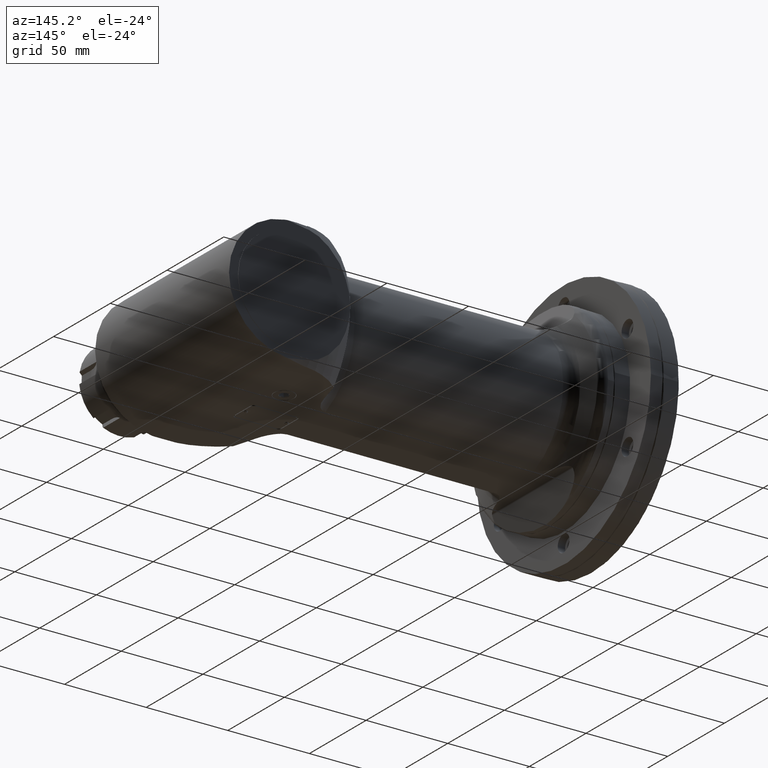
[diagram: clean part render]
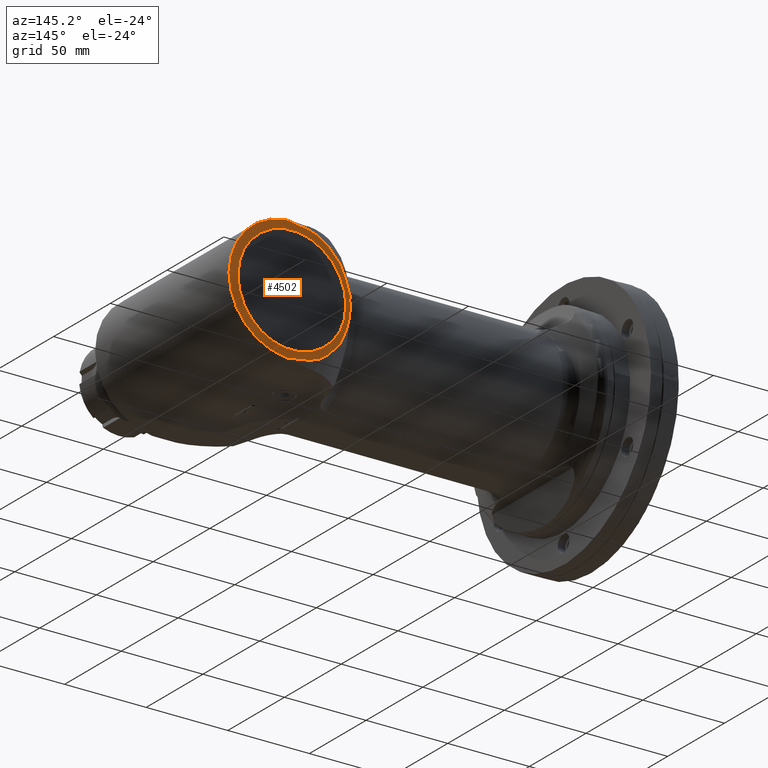
[diagram: same view with one face highlighted and labeled with its STEP entity id]
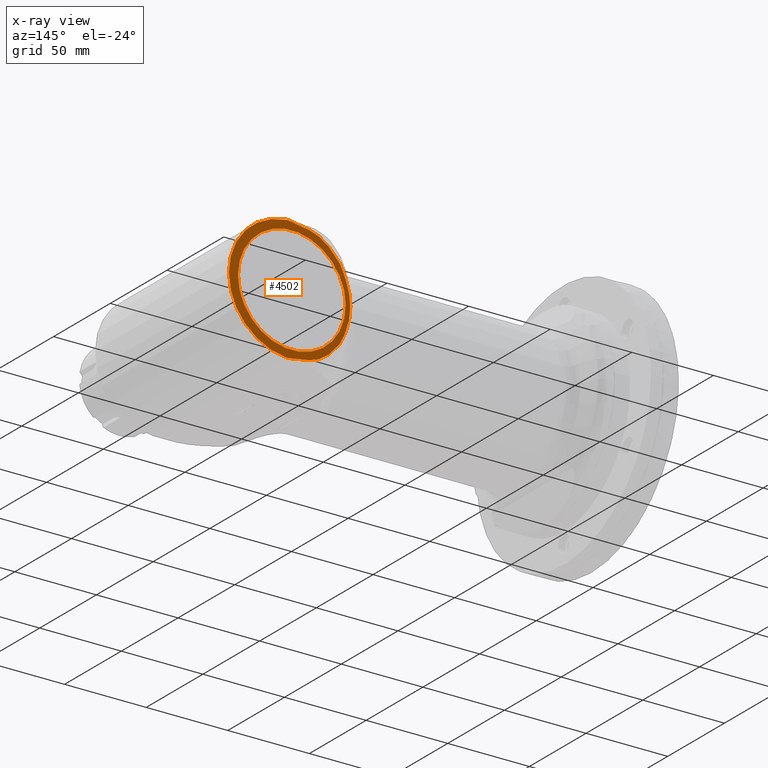
[diagram: x-ray of the same camera — body ghosted, the highlighted face saturated]
A machine part, auxiliary view. The second image highlights one B-rep face of the part: STEP entity #4502.
The next image is the same camera in x-ray: the body ghosted, the highlighted face saturated — about 0% of this face is hidden behind the body in this view.
In plain terms, the highlighted planar face has unit normal (0, -1, 0).
Its self-contained STEP definition (entity closure, byte-faithful):
#133=FACE_BOUND('',#735,.T.);
#251=(
BOUNDED_CURVE()
B_SPLINE_CURVE(2,(#6789,#6790,#6791),.UNSPECIFIED.,.F.,.F.)
B_SPLINE_CURVE_WITH_KNOTS((3,3),(2.9344808573862,4.30098563058808),
 .UNSPECIFIED.)
CURVE()
GEOMETRIC_REPRESENTATION_ITEM()
RATIONAL_B_SPLINE_CURVE((1.00188573708605,1.00205643421687,1.00197718661713))
REPRESENTATION_ITEM('')
);
#252=(
BOUNDED_CURVE()
B_SPLINE_CURVE(2,(#6795,#6796,#6797),.UNSPECIFIED.,.F.,.F.)
B_SPLINE_CURVE_WITH_KNOTS((3,3),(2.71811370431407,3.37089348317896),
 .UNSPECIFIED.)
CURVE()
GEOMETRIC_REPRESENTATION_ITEM()
RATIONAL_B_SPLINE_CURVE((1.00705525668743,1.00746944687986,1.00767565836461))
REPRESENTATION_ITEM('')
);
#275=(
BOUNDED_CURVE()
B_SPLINE_CURVE(2,(#7364,#7365,#7366),.UNSPECIFIED.,.F.,.F.)
B_SPLINE_CURVE_WITH_KNOTS((3,3),(-11.5955866176865,-7.66377423123892),
 .UNSPECIFIED.)
CURVE()
GEOMETRIC_REPRESENTATION_ITEM()
RATIONAL_B_SPLINE_CURVE((1.39892913016397,1.39892913016397,1.35306260130722))
REPRESENTATION_ITEM('')
);
#276=(
BOUNDED_CURVE()
B_SPLINE_CURVE(2,(#7370,#7371,#7372),.UNSPECIFIED.,.F.,.F.)
B_SPLINE_CURVE_WITH_KNOTS((3,3),(-6.20125849455531,-5.31660579783895),
 .UNSPECIFIED.)
CURVE()
GEOMETRIC_REPRESENTATION_ITEM()
RATIONAL_B_SPLINE_CURVE((1.02211110432455,1.0241005158453,1.02507233728092))
REPRESENTATION_ITEM('')
);
#277=(
BOUNDED_CURVE()
B_SPLINE_CURVE(2,(#7378,#7379,#7380),.UNSPECIFIED.,.F.,.F.)
B_SPLINE_CURVE_WITH_KNOTS((3,3),(-4.3009856305943,-2.93448085738645),
 .UNSPECIFIED.)
CURVE()
GEOMETRIC_REPRESENTATION_ITEM()
RATIONAL_B_SPLINE_CURVE((1.0019771866171,1.00205643421684,1.00188573708602))
REPRESENTATION_ITEM('')
);
#278=(
BOUNDED_CURVE()
B_SPLINE_CURVE(2,(#7382,#7383,#7384),.UNSPECIFIED.,.F.,.F.)
B_SPLINE_CURVE_WITH_KNOTS((3,3),(-3.37089348317902,-2.71811370431375),
 .UNSPECIFIED.)
CURVE()
GEOMETRIC_REPRESENTATION_ITEM()
RATIONAL_B_SPLINE_CURVE((1.0076756583646,1.00746944687986,1.00705525668742))
REPRESENTATION_ITEM('')
);
#279=(
BOUNDED_CURVE()
B_SPLINE_CURVE(2,(#7386,#7387,#7388),.UNSPECIFIED.,.F.,.F.)
B_SPLINE_CURVE_WITH_KNOTS((3,3),(-3.62687932288161,-2.74222662616888),
 .UNSPECIFIED.)
CURVE()
GEOMETRIC_REPRESENTATION_ITEM()
RATIONAL_B_SPLINE_CURVE((1.02507233728092,1.0241005158453,1.02211110432457))
REPRESENTATION_ITEM('')
);
#280=(
BOUNDED_CURVE()
B_SPLINE_CURVE(2,(#7389,#7390,#7391),.UNSPECIFIED.,.F.,.F.)
B_SPLINE_CURVE_WITH_KNOTS((3,3),(-3.71365839817069,-2.37944947307914),
 .UNSPECIFIED.)
CURVE()
GEOMETRIC_REPRESENTATION_ITEM()
RATIONAL_B_SPLINE_CURVE((1.04614546941659,1.04271614922882,1.03579468905904))
REPRESENTATION_ITEM('')
);
#281=(
BOUNDED_CURVE()
B_SPLINE_CURVE(2,(#7393,#7394,#7395),.UNSPECIFIED.,.F.,.F.)
B_SPLINE_CURVE_WITH_KNOTS((3,3),(7.66377423123892,11.5955866176865),
 .UNSPECIFIED.)
CURVE()
GEOMETRIC_REPRESENTATION_ITEM()
RATIONAL_B_SPLINE_CURVE((1.35306260130722,1.39892913016397,1.39892913016397))
REPRESENTATION_ITEM('')
);
#282=(
BOUNDED_CURVE()
B_SPLINE_CURVE(2,(#7396,#7397,#7398),.UNSPECIFIED.,.F.,.F.)
B_SPLINE_CURVE_WITH_KNOTS((3,3),(-7.66828324306775,-6.33407431797829),
 .UNSPECIFIED.)
CURVE()
GEOMETRIC_REPRESENTATION_ITEM()
RATIONAL_B_SPLINE_CURVE((1.03579468905904,1.04271614922881,1.04614546941659))
REPRESENTATION_ITEM('')
);
#439=FACE_OUTER_BOUND('',#734,.T.);
#734=EDGE_LOOP('',(#3222,#3223,#3224,#3225,#3226,#3227,#3228,#3229,#3230,
#3231,#3232,#3233,#3234));
#735=EDGE_LOOP('',(#3235));
#1117=CIRCLE('',#4890,38.);
#1118=CIRCLE('',#4891,33.);
#1322=LINE('',#6783,#1580);
#1361=LINE('',#7376,#1619);
#1580=VECTOR('',#5373,10.);
#1619=VECTOR('',#5610,10.);
#1843=VERTEX_POINT('',#6780);
#1844=VERTEX_POINT('',#6782);
#1845=VERTEX_POINT('',#6788);
#1846=VERTEX_POINT('',#6794);
#1947=VERTEX_POINT('',#7359);
#1948=VERTEX_POINT('',#7363);
#1949=VERTEX_POINT('',#7369);
#1950=VERTEX_POINT('',#7373);
#1951=VERTEX_POINT('',#7375);
#1952=VERTEX_POINT('',#7377);
#1953=VERTEX_POINT('',#7381);
#1954=VERTEX_POINT('',#7385);
#1955=VERTEX_POINT('',#7392);
#1956=VERTEX_POINT('',#7399);
#2297=EDGE_CURVE('',#1844,#1843,#1322,.T.);
#2299=EDGE_CURVE('',#1845,#1844,#251,.T.);
#2301=EDGE_CURVE('',#1846,#1845,#252,.T.);
#2437=EDGE_CURVE('',#1947,#1948,#275,.T.);
#2439=EDGE_CURVE('',#1949,#1846,#276,.T.);
#2440=EDGE_CURVE('',#1843,#1950,#1117,.T.);
#2441=EDGE_CURVE('',#1950,#1951,#1361,.T.);
#2442=EDGE_CURVE('',#1951,#1952,#277,.T.);
#2443=EDGE_CURVE('',#1952,#1953,#278,.T.);
#2444=EDGE_CURVE('',#1953,#1954,#279,.T.);
#2445=EDGE_CURVE('',#1954,#1948,#280,.T.);
#2446=EDGE_CURVE('',#1955,#1947,#281,.T.);
#2447=EDGE_CURVE('',#1955,#1949,#282,.T.);
#2448=EDGE_CURVE('',#1956,#1956,#1118,.T.);
#3222=ORIENTED_EDGE('',*,*,#2439,.T.);
#3223=ORIENTED_EDGE('',*,*,#2301,.T.);
#3224=ORIENTED_EDGE('',*,*,#2299,.T.);
#3225=ORIENTED_EDGE('',*,*,#2297,.T.);
#3226=ORIENTED_EDGE('',*,*,#2440,.T.);
#3227=ORIENTED_EDGE('',*,*,#2441,.T.);
#3228=ORIENTED_EDGE('',*,*,#2442,.T.);
#3229=ORIENTED_EDGE('',*,*,#2443,.T.);
#3230=ORIENTED_EDGE('',*,*,#2444,.T.);
#3231=ORIENTED_EDGE('',*,*,#2445,.T.);
#3232=ORIENTED_EDGE('',*,*,#2437,.F.);
#3233=ORIENTED_EDGE('',*,*,#2446,.F.);
#3234=ORIENTED_EDGE('',*,*,#2447,.T.);
#3235=ORIENTED_EDGE('',*,*,#2448,.F.);
#4345=PLANE('',#4889);
#4502=ADVANCED_FACE('',(#439,#133),#4345,.F.);
#4889=AXIS2_PLACEMENT_3D('',#7368,#5606,#5607);
#4890=AXIS2_PLACEMENT_3D('',#7374,#5608,#5609);
#4891=AXIS2_PLACEMENT_3D('',#7400,#5611,#5612);
#5373=DIRECTION('',(0.996194698091745,0.,-0.0871557427476639));
#5606=DIRECTION('center_axis',(0.,-1.,0.));
#5607=DIRECTION('ref_axis',(0.,0.,1.));
#5608=DIRECTION('center_axis',(0.,1.,0.));
#5609=DIRECTION('ref_axis',(0.0871557427475461,0.,0.996194698091755));
#5610=DIRECTION('',(-0.996194698091745,0.,-0.0871557427476639));
#5611=DIRECTION('center_axis',(0.,1.,0.));
#5612=DIRECTION('ref_axis',(-1.,0.,0.));
#6780=CARTESIAN_POINT('',(3.81191822441,59.,37.85539852749));
#6782=CARTESIAN_POINT('',(2.44584510329297,59.0000000009242,37.9749144391316));
#6783=CARTESIAN_POINT('',(-74.3381319615015,59.,44.6926419727361));
#6788=CARTESIAN_POINT('',(-10.8674698918683,58.9999999973163,35.7770876557368));
#6789=CARTESIAN_POINT('Ctrl Pts',(-10.8674698421901,59.,35.777087656826));
#6790=CARTESIAN_POINT('Ctrl Pts',(-4.40918231304288,59.,36.8668034983078));
#6791=CARTESIAN_POINT('Ctrl Pts',(2.44584509169432,59.,37.9749144401463));
#6794=CARTESIAN_POINT('',(-16.538751341506,58.999999958606,33.8082832713528));
#6795=CARTESIAN_POINT('Ctrl Pts',(-16.538750917214,59.,33.8082833081792));
#6796=CARTESIAN_POINT('Ctrl Pts',(-13.7833402187719,59.,34.7855000662087));
#6797=CARTESIAN_POINT('Ctrl Pts',(-10.8674698922536,59.,35.7770876568698));
#7359=CARTESIAN_POINT('',(-35.83356727372,59.,-2.503918011237E-13));
#7363=CARTESIAN_POINT('',(-29.43222915756,59.,-22.09072203437));
#7364=CARTESIAN_POINT('Ctrl Pts',(-35.8335672737221,59.,-8.1267045821178E-14));
#7365=CARTESIAN_POINT('Ctrl Pts',(-35.8335672737221,59.,-10.6832180328903));
#7366=CARTESIAN_POINT('Ctrl Pts',(-29.4322291577152,59.,-22.0907220340942));
#7368=CARTESIAN_POINT('Origin',(-151.8000024,59.,-91.286499));
#7369=CARTESIAN_POINT('',(-22.6941141646081,58.9999992309314,29.5804042866996));
#7370=CARTESIAN_POINT('Ctrl Pts',(-22.6941098599346,59.,29.5804054227022));
#7371=CARTESIAN_POINT('Ctrl Pts',(-19.8217046396396,59.,31.6627930684993));
#7372=CARTESIAN_POINT('Ctrl Pts',(-16.5387513469436,59.,33.8082832796732));
#7373=CARTESIAN_POINT('',(3.81191822441,59.,-37.85539852749));
#7374=CARTESIAN_POINT('Origin',(0.5,59.,0.));
#7375=CARTESIAN_POINT('',(2.44584509214286,59.,-37.9749144401108));
#7376=CARTESIAN_POINT('',(-75.7225717116494,59.,-44.8137647562124));
#7377=CARTESIAN_POINT('',(-10.8674698918684,58.9999999973173,-35.7770876557311));
#7378=CARTESIAN_POINT('Ctrl Pts',(2.44584509175642,59.,-37.9749144401447));
#7379=CARTESIAN_POINT('Ctrl Pts',(-4.40918231301266,59.,-36.8668034983009));
#7380=CARTESIAN_POINT('Ctrl Pts',(-10.8674698421885,59.,-35.7770876568141));
#7381=CARTESIAN_POINT('',(-16.5387513415085,58.9999999586063,-33.8082832713513));
#7382=CARTESIAN_POINT('Ctrl Pts',(-10.8674698922554,59.,-35.7770876568692));
#7383=CARTESIAN_POINT('Ctrl Pts',(-13.7833402187754,59.,-34.7855000662074));
#7384=CARTESIAN_POINT('Ctrl Pts',(-16.538750917219,59.,-33.8082833081774));
#7385=CARTESIAN_POINT('',(-22.694114164597,58.9999992309296,-29.5804042867125));
#7386=CARTESIAN_POINT('Ctrl Pts',(-16.5387513469461,59.,-33.8082832796716));
#7387=CARTESIAN_POINT('Ctrl Pts',(-19.8217046396284,59.,-31.6627930685066));
#7388=CARTESIAN_POINT('Ctrl Pts',(-22.6941098599131,59.,-29.5804054227178));
#7389=CARTESIAN_POINT('Ctrl Pts',(-22.6941137991998,59.,-29.5804039188869));
#7390=CARTESIAN_POINT('Ctrl Pts',(-26.5515132708633,59.,-25.7484735888057));
#7391=CARTESIAN_POINT('Ctrl Pts',(-29.4322291575599,59.,-22.0907220343699));
#7392=CARTESIAN_POINT('',(-29.43222915756,59.,22.09072203437));
#7393=CARTESIAN_POINT('Ctrl Pts',(-29.4322291577152,59.,22.0907220340942));
#7394=CARTESIAN_POINT('Ctrl Pts',(-35.8335672737221,59.,10.6832180328902));
#7395=CARTESIAN_POINT('Ctrl Pts',(-35.8335672737221,59.,-1.37138139823238E-13));
#7396=CARTESIAN_POINT('Ctrl Pts',(-29.4322291575599,59.,22.09072203437));
#7397=CARTESIAN_POINT('Ctrl Pts',(-26.5515132708677,59.,25.7484735888));
#7398=CARTESIAN_POINT('Ctrl Pts',(-22.6941137992119,59.,29.5804039188749));
#7399=CARTESIAN_POINT('',(33.,59.,-6.78661402582563E-14));
#7400=CARTESIAN_POINT('Origin',(0.,59.,-6.382480582107E-14));